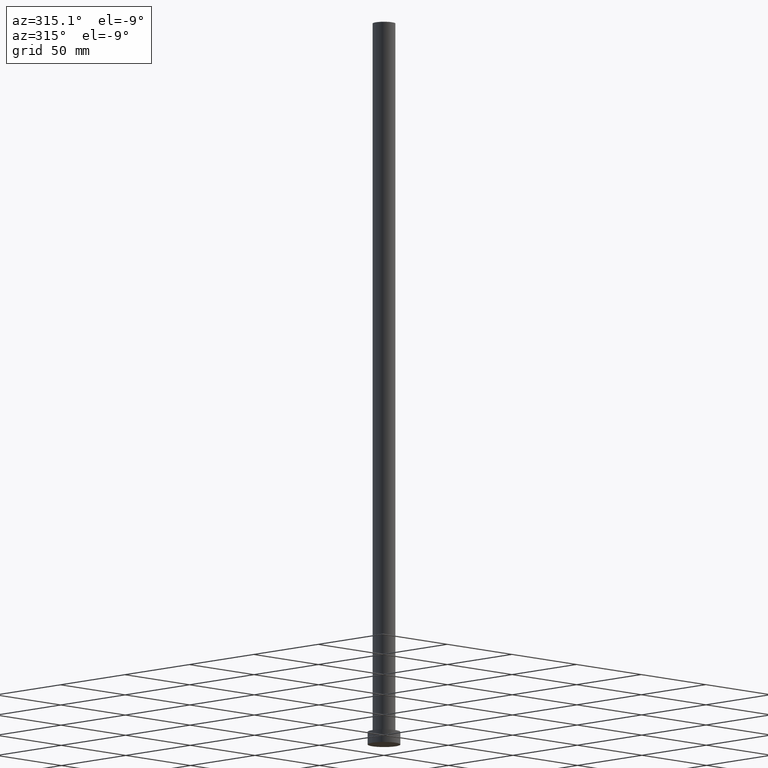
[diagram: clean part render]
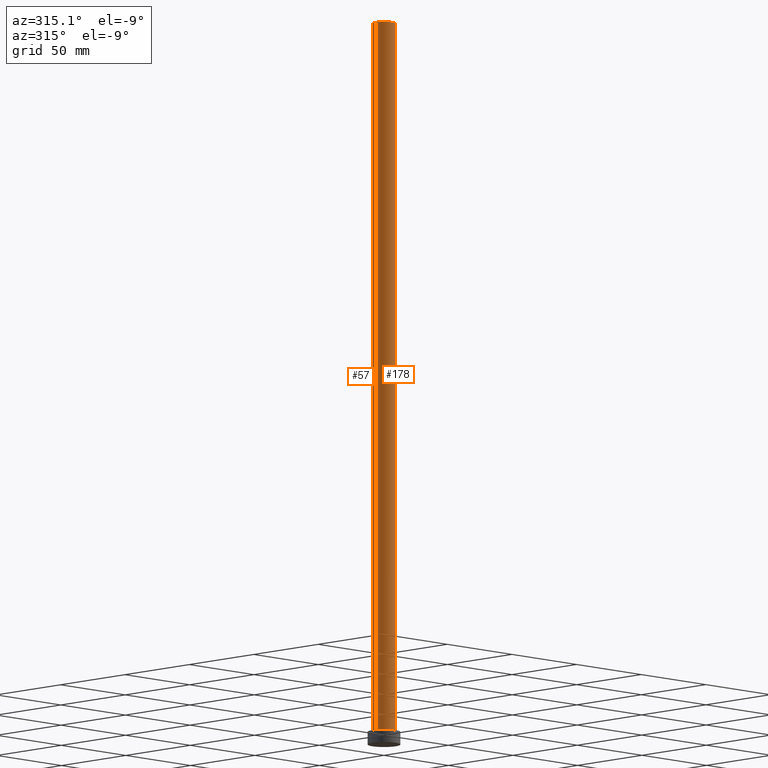
[diagram: same view with one multi-face feature highlighted, each face labeled with its STEP entity id]
A machine part, auxiliary view. The highlighted faces form ONE feature: a constant-radius fillet chain: 2 tangent blend faces with common blend radius 6.25 mm. The faces share edges in the B-rep.
Their STEP definitions:
[1] entity #178 (Cylinder):
#4 = VERTEX_POINT ( 'NONE', #13 ) ;
#5 = ORIENTED_EDGE ( 'NONE', *, *, #83, .F. ) ;
#10 = LINE ( 'NONE', #169, #230 ) ;
#13 = CARTESIAN_POINT ( 'NONE',  ( 6.250000000000000000, 7.654042494670957606E-16, 400.0000000000000000 ) ) ;
#16 = DIRECTION ( 'NONE',  ( 1.000000000000000000, 0.000000000000000000, 0.000000000000000000 ) ) ;
#39 = VERTEX_POINT ( 'NONE', #137 ) ;
#46 = DIRECTION ( 'NONE',  ( 1.000000000000000000, 0.000000000000000000, 0.000000000000000000 ) ) ;
#48 = CIRCLE ( 'NONE', #133, 6.250000000000000000 ) ;
#53 = VECTOR ( 'NONE', #118, 1000.000000000000000 ) ;
#59 = DIRECTION ( 'NONE',  ( 0.000000000000000000, 0.000000000000000000, 1.000000000000000000 ) ) ;
#61 = EDGE_CURVE ( 'NONE', #4, #138, #250, .T. ) ;
#64 = AXIS2_PLACEMENT_3D ( 'NONE', #187, #248, #222 ) ;
#80 = CYLINDRICAL_SURFACE ( 'NONE', #64, 6.250000000000000000 ) ;
#81 = CARTESIAN_POINT ( 'NONE',  ( 6.250000000000000000, 7.654042494670957606E-16, 400.0000000000000000 ) ) ;
#83 = EDGE_CURVE ( 'NONE', #39, #4, #99, .T. ) ;
#92 = ORIENTED_EDGE ( 'NONE', *, *, #224, .T. ) ;
#97 = DIRECTION ( 'NONE',  ( -0.000000000000000000, -0.000000000000000000, -1.000000000000000000 ) ) ;
#98 = CARTESIAN_POINT ( 'NONE',  ( -6.250000000000000000, 0.000000000000000000, 7.000000000000000000 ) ) ;
#99 = CIRCLE ( 'NONE', #108, 6.250000000000000000 ) ;
#108 = AXIS2_PLACEMENT_3D ( 'NONE', #211, #160, #46 ) ;
#118 = DIRECTION ( 'NONE',  ( -0.000000000000000000, -0.000000000000000000, -1.000000000000000000 ) ) ;
#133 = AXIS2_PLACEMENT_3D ( 'NONE', #155, #59, #16 ) ;
#137 = CARTESIAN_POINT ( 'NONE',  ( -6.250000000000000000, 0.000000000000000000, 400.0000000000000000 ) ) ;
#138 = VERTEX_POINT ( 'NONE', #231 ) ;
#155 = CARTESIAN_POINT ( 'NONE',  ( 0.000000000000000000, 0.000000000000000000, 7.000000000000000000 ) ) ;
#160 = DIRECTION ( 'NONE',  ( 0.000000000000000000, 0.000000000000000000, 1.000000000000000000 ) ) ;
#166 = VERTEX_POINT ( 'NONE', #98 ) ;
#169 = CARTESIAN_POINT ( 'NONE',  ( -6.250000000000000000, 0.000000000000000000, 400.0000000000000000 ) ) ;
#178 = ADVANCED_FACE ( 'NONE', ( #249 ), #80, .T. ) ;
#187 = CARTESIAN_POINT ( 'NONE',  ( 0.000000000000000000, 0.000000000000000000, 400.0000000000000000 ) ) ;
#206 = ORIENTED_EDGE ( 'NONE', *, *, #234, .T. ) ;
#211 = CARTESIAN_POINT ( 'NONE',  ( 0.000000000000000000, 0.000000000000000000, 400.0000000000000000 ) ) ;
#222 = DIRECTION ( 'NONE',  ( -1.000000000000000000, 0.000000000000000000, 0.000000000000000000 ) ) ;
#223 = EDGE_LOOP ( 'NONE', ( #242, #5, #206, #92 ) ) ;
#224 = EDGE_CURVE ( 'NONE', #166, #138, #48, .T. ) ;
#230 = VECTOR ( 'NONE', #97, 1000.000000000000000 ) ;
#231 = CARTESIAN_POINT ( 'NONE',  ( 6.250000000000000000, 7.654042494670957606E-16, 7.000000000000000000 ) ) ;
#234 = EDGE_CURVE ( 'NONE', #39, #166, #10, .T. ) ;
#242 = ORIENTED_EDGE ( 'NONE', *, *, #61, .F. ) ;
#248 = DIRECTION ( 'NONE',  ( -0.000000000000000000, -0.000000000000000000, -1.000000000000000000 ) ) ;
#249 = FACE_OUTER_BOUND ( 'NONE', #223, .T. ) ;
#250 = LINE ( 'NONE', #81, #53 ) ;
[2] entity #57 (Cylinder):
#1 = CARTESIAN_POINT ( 'NONE',  ( 0.000000000000000000, 0.000000000000000000, 400.0000000000000000 ) ) ;
#4 = VERTEX_POINT ( 'NONE', #13 ) ;
#7 = CIRCLE ( 'NONE', #85, 6.250000000000000000 ) ;
#9 = CARTESIAN_POINT ( 'NONE',  ( 0.000000000000000000, 0.000000000000000000, 400.0000000000000000 ) ) ;
#10 = LINE ( 'NONE', #169, #230 ) ;
#13 = CARTESIAN_POINT ( 'NONE',  ( 6.250000000000000000, 7.654042494670957606E-16, 400.0000000000000000 ) ) ;
#15 = DIRECTION ( 'NONE',  ( 1.000000000000000000, 0.000000000000000000, 0.000000000000000000 ) ) ;
#21 = EDGE_CURVE ( 'NONE', #4, #39, #139, .T. ) ;
#28 = AXIS2_PLACEMENT_3D ( 'NONE', #9, #94, #56 ) ;
#33 = DIRECTION ( 'NONE',  ( 0.000000000000000000, 0.000000000000000000, 1.000000000000000000 ) ) ;
#39 = VERTEX_POINT ( 'NONE', #137 ) ;
#43 = CYLINDRICAL_SURFACE ( 'NONE', #226, 6.250000000000000000 ) ;
#50 = EDGE_LOOP ( 'NONE', ( #113, #60, #199, #245 ) ) ;
#53 = VECTOR ( 'NONE', #118, 1000.000000000000000 ) ;
#56 = DIRECTION ( 'NONE',  ( 1.000000000000000000, 0.000000000000000000, 0.000000000000000000 ) ) ;
#57 = ADVANCED_FACE ( 'NONE', ( #140 ), #43, .T. ) ;
#60 = ORIENTED_EDGE ( 'NONE', *, *, #61, .T. ) ;
#61 = EDGE_CURVE ( 'NONE', #4, #138, #250, .T. ) ;
#81 = CARTESIAN_POINT ( 'NONE',  ( 6.250000000000000000, 7.654042494670957606E-16, 400.0000000000000000 ) ) ;
#84 = DIRECTION ( 'NONE',  ( -1.000000000000000000, 0.000000000000000000, 0.000000000000000000 ) ) ;
#85 = AXIS2_PLACEMENT_3D ( 'NONE', #186, #33, #15 ) ;
#94 = DIRECTION ( 'NONE',  ( 0.000000000000000000, 0.000000000000000000, 1.000000000000000000 ) ) ;
#97 = DIRECTION ( 'NONE',  ( -0.000000000000000000, -0.000000000000000000, -1.000000000000000000 ) ) ;
#98 = CARTESIAN_POINT ( 'NONE',  ( -6.250000000000000000, 0.000000000000000000, 7.000000000000000000 ) ) ;
#102 = DIRECTION ( 'NONE',  ( -0.000000000000000000, -0.000000000000000000, -1.000000000000000000 ) ) ;
#113 = ORIENTED_EDGE ( 'NONE', *, *, #21, .F. ) ;
#118 = DIRECTION ( 'NONE',  ( -0.000000000000000000, -0.000000000000000000, -1.000000000000000000 ) ) ;
#137 = CARTESIAN_POINT ( 'NONE',  ( -6.250000000000000000, 0.000000000000000000, 400.0000000000000000 ) ) ;
#138 = VERTEX_POINT ( 'NONE', #231 ) ;
#139 = CIRCLE ( 'NONE', #28, 6.250000000000000000 ) ;
#140 = FACE_OUTER_BOUND ( 'NONE', #50, .T. ) ;
#166 = VERTEX_POINT ( 'NONE', #98 ) ;
#169 = CARTESIAN_POINT ( 'NONE',  ( -6.250000000000000000, 0.000000000000000000, 400.0000000000000000 ) ) ;
#186 = CARTESIAN_POINT ( 'NONE',  ( 0.000000000000000000, 0.000000000000000000, 7.000000000000000000 ) ) ;
#199 = ORIENTED_EDGE ( 'NONE', *, *, #205, .T. ) ;
#205 = EDGE_CURVE ( 'NONE', #138, #166, #7, .T. ) ;
#226 = AXIS2_PLACEMENT_3D ( 'NONE', #1, #102, #84 ) ;
#230 = VECTOR ( 'NONE', #97, 1000.000000000000000 ) ;
#231 = CARTESIAN_POINT ( 'NONE',  ( 6.250000000000000000, 7.654042494670957606E-16, 7.000000000000000000 ) ) ;
#234 = EDGE_CURVE ( 'NONE', #39, #166, #10, .T. ) ;
#245 = ORIENTED_EDGE ( 'NONE', *, *, #234, .F. ) ;
#250 = LINE ( 'NONE', #81, #53 ) ;